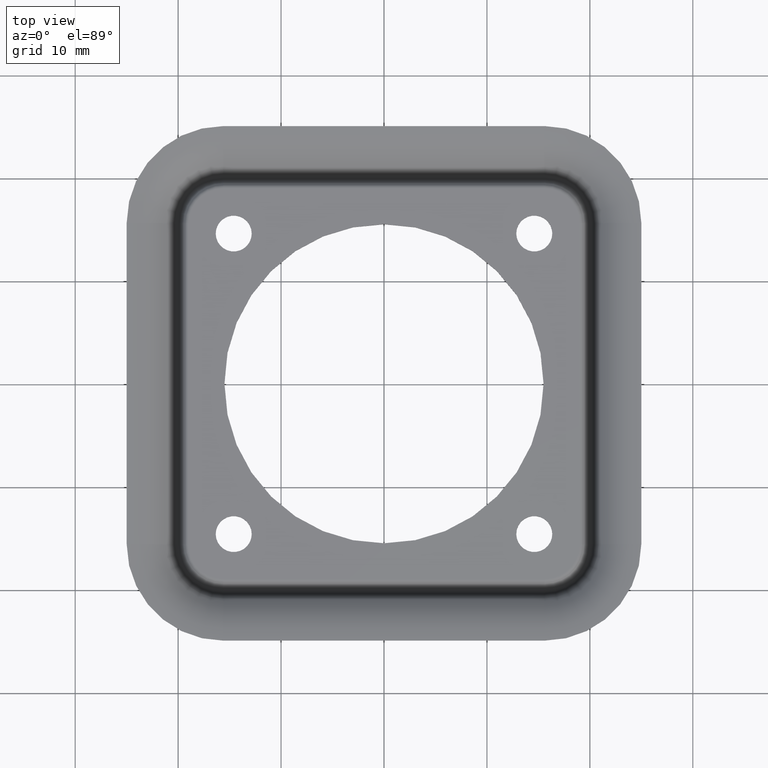
[diagram: clean part render]
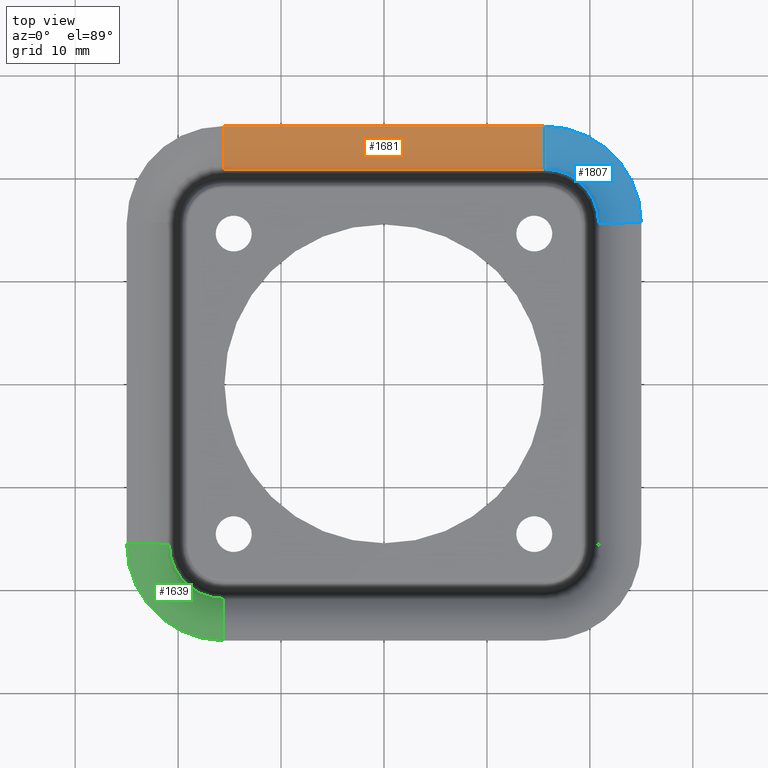
[diagram: same view with three faces highlighted in distinct colors, each labeled with its STEP entity id]
A machine part, top view with three faces highlighted in distinct colors.
Their STEP definitions:

[orange] entity #1681 — the highlighted cylindrical surface (partial cylindrical patch) has radius 5.2858 mm, axis along (-1, 0, 0).
#425=CARTESIAN_POINT('',(-1.56E1,2.5E1,-2.285771302338E0));
#426=DIRECTION('',(-1.E0,0.E0,0.E0));
#427=DIRECTION('',(0.E0,-7.833144229636E-1,6.216257031183E-1));
#428=AXIS2_PLACEMENT_3D('',#425,#426,#427);
#435=DIRECTION('',(1.E0,0.E0,0.E0));
#436=VECTOR('',#435,3.12E1);
#437=CARTESIAN_POINT('',(-1.56E1,2.5E1,3.E0));
#438=LINE('',#437,#436);
#439=CARTESIAN_POINT('',(1.56E1,2.5E1,-2.285771302338E0));
#440=DIRECTION('',(-1.E0,0.E0,0.E0));
#441=DIRECTION('',(0.E0,-7.833144229636E-1,6.216257031183E-1));
#442=AXIS2_PLACEMENT_3D('',#439,#440,#441);
#444=DIRECTION('',(-1.E0,0.E0,0.E0));
#445=VECTOR('',#444,3.12E1);
#446=CARTESIAN_POINT('',(1.56E1,2.085957910239E1,1.E0));
#447=LINE('',#446,#445);
#837=CARTESIAN_POINT('',(-1.56E1,2.5E1,3.E0));
#839=VERTEX_POINT('',#837);
#865=CARTESIAN_POINT('',(1.56E1,2.5E1,3.E0));
#867=VERTEX_POINT('',#865);
#874=CARTESIAN_POINT('',(-1.56E1,2.085957910239E1,1.E0));
#876=VERTEX_POINT('',#874);
#930=CARTESIAN_POINT('',(1.56E1,2.085957910239E1,1.E0));
#932=VERTEX_POINT('',#930);
#1668=CARTESIAN_POINT('',(0.E0,2.5E1,-2.285771302338E0));
#1669=DIRECTION('',(-1.E0,0.E0,0.E0));
#1670=DIRECTION('',(0.E0,-1.E0,0.E0));
#1671=AXIS2_PLACEMENT_3D('',#1668,#1669,#1670);
#1672=CYLINDRICAL_SURFACE('',#1671,5.285771302338E0);
#1674=ORIENTED_EDGE('',*,*,#1673,.T.);
#1676=ORIENTED_EDGE('',*,*,#1675,.F.);
#1677=ORIENTED_EDGE('',*,*,#1438,.T.);
#1678=ORIENTED_EDGE('',*,*,#1659,.T.);
#1679=EDGE_LOOP('',(#1674,#1676,#1677,#1678));
#1680=FACE_OUTER_BOUND('',#1679,.F.);
#1681=ADVANCED_FACE('',(#1680),#1672,.T.);
#429=CIRCLE('',#428,5.285771302338E0);
#443=CIRCLE('',#442,5.285771302338E0);
#1438=EDGE_CURVE('',#932,#876,#447,.T.);
#1659=EDGE_CURVE('',#876,#839,#429,.T.);
#1673=EDGE_CURVE('',#839,#867,#438,.T.);
#1675=EDGE_CURVE('',#932,#867,#443,.T.);

[blue] entity #1807 — the highlighted toroidal blend (fillet) surface has major radius 9.4 mm and minor (blend) radius 5.2858 mm.
#439=CARTESIAN_POINT('',(1.56E1,2.5E1,-2.285771302338E0));
#440=DIRECTION('',(-1.E0,0.E0,0.E0));
#441=DIRECTION('',(0.E0,-7.833144229636E-1,6.216257031183E-1));
#442=AXIS2_PLACEMENT_3D('',#439,#440,#441);
#514=CARTESIAN_POINT('',(2.5E1,1.56E1,-2.285771302338E0));
#515=DIRECTION('',(0.E0,1.E0,0.E0));
#516=DIRECTION('',(-7.833144229636E-1,0.E0,6.216257031183E-1));
#517=AXIS2_PLACEMENT_3D('',#514,#515,#516);
#519=CARTESIAN_POINT('',(1.56E1,1.56E1,1.E0));
#520=DIRECTION('',(0.E0,0.E0,1.E0));
#521=DIRECTION('',(1.E0,0.E0,0.E0));
#522=AXIS2_PLACEMENT_3D('',#519,#520,#521);
#528=CARTESIAN_POINT('',(1.56E1,1.56E1,3.E0));
#529=DIRECTION('',(0.E0,0.E0,1.E0));
#530=DIRECTION('',(1.E0,0.E0,0.E0));
#531=AXIS2_PLACEMENT_3D('',#528,#529,#530);
#861=CARTESIAN_POINT('',(2.5E1,1.56E1,3.E0));
#863=VERTEX_POINT('',#861);
#865=CARTESIAN_POINT('',(1.56E1,2.5E1,3.E0));
#867=VERTEX_POINT('',#865);
#922=CARTESIAN_POINT('',(2.085957910239E1,1.56E1,1.E0));
#924=VERTEX_POINT('',#922);
#930=CARTESIAN_POINT('',(1.56E1,2.085957910239E1,1.E0));
#932=VERTEX_POINT('',#930);
#1795=CARTESIAN_POINT('',(1.56E1,1.56E1,-2.285771302338E0));
#1796=DIRECTION('',(0.E0,0.E0,1.E0));
#1797=DIRECTION('',(-1.E0,0.E0,0.E0));
#1798=AXIS2_PLACEMENT_3D('',#1795,#1796,#1797);
#1799=TOROIDAL_SURFACE('',#1798,9.4E0,5.285771302338E0);
#1800=ORIENTED_EDGE('',*,*,#1788,.F.);
#1801=ORIENTED_EDGE('',*,*,#1565,.T.);
#1802=ORIENTED_EDGE('',*,*,#1675,.T.);
#1804=ORIENTED_EDGE('',*,*,#1803,.F.);
#1805=EDGE_LOOP('',(#1800,#1801,#1802,#1804));
#1806=FACE_OUTER_BOUND('',#1805,.F.);
#1807=ADVANCED_FACE('',(#1806),#1799,.T.);
#443=CIRCLE('',#442,5.285771302338E0);
#518=CIRCLE('',#517,5.285771302338E0);
#523=CIRCLE('',#522,5.259579102391E0);
#532=CIRCLE('',#531,9.4E0);
#1565=EDGE_CURVE('',#924,#932,#523,.T.);
#1675=EDGE_CURVE('',#932,#867,#443,.T.);
#1788=EDGE_CURVE('',#924,#863,#518,.T.);
#1803=EDGE_CURVE('',#863,#867,#532,.T.);

[green] entity #1639 — the highlighted toroidal blend (fillet) surface has major radius 9.4 mm and minor (blend) radius 5.2858 mm.
#397=CARTESIAN_POINT('',(-1.56E1,-2.5E1,-2.285771302338E0));
#398=DIRECTION('',(1.E0,0.E0,0.E0));
#399=DIRECTION('',(0.E0,7.833144229636E-1,6.216257031183E-1));
#400=AXIS2_PLACEMENT_3D('',#397,#398,#399);
#406=CARTESIAN_POINT('',(-2.5E1,-1.56E1,-2.285771302338E0));
#407=DIRECTION('',(0.E0,-1.E0,0.E0));
#408=DIRECTION('',(7.833144229636E-1,0.E0,6.216257031183E-1));
#409=AXIS2_PLACEMENT_3D('',#406,#407,#408);
#411=CARTESIAN_POINT('',(-1.56E1,-1.56E1,1.E0));
#412=DIRECTION('',(0.E0,0.E0,1.E0));
#413=DIRECTION('',(-1.E0,0.E0,0.E0));
#414=AXIS2_PLACEMENT_3D('',#411,#412,#413);
#473=CARTESIAN_POINT('',(-1.56E1,-1.56E1,3.E0));
#474=DIRECTION('',(0.E0,0.E0,1.E0));
#475=DIRECTION('',(-1.E0,0.E0,0.E0));
#476=AXIS2_PLACEMENT_3D('',#473,#474,#475);
#845=CARTESIAN_POINT('',(-2.5E1,-1.56E1,3.E0));
#847=VERTEX_POINT('',#845);
#849=CARTESIAN_POINT('',(-1.56E1,-2.5E1,3.E0));
#851=VERTEX_POINT('',#849);
#890=CARTESIAN_POINT('',(-2.085957910239E1,-1.56E1,1.E0));
#892=VERTEX_POINT('',#890);
#898=CARTESIAN_POINT('',(-1.56E1,-2.085957910239E1,1.E0));
#900=VERTEX_POINT('',#898);
#1626=CARTESIAN_POINT('',(-1.56E1,-1.56E1,-2.285771302338E0));
#1627=DIRECTION('',(0.E0,0.E0,1.E0));
#1628=DIRECTION('',(1.E0,0.E0,0.E0));
#1629=AXIS2_PLACEMENT_3D('',#1626,#1627,#1628);
#1630=TOROIDAL_SURFACE('',#1629,9.4E0,5.285771302338E0);
#1632=ORIENTED_EDGE('',*,*,#1631,.F.);
#1633=ORIENTED_EDGE('',*,*,#1483,.T.);
#1634=ORIENTED_EDGE('',*,*,#1616,.T.);
#1636=ORIENTED_EDGE('',*,*,#1635,.F.);
#1637=EDGE_LOOP('',(#1632,#1633,#1634,#1636));
#1638=FACE_OUTER_BOUND('',#1637,.F.);
#1639=ADVANCED_FACE('',(#1638),#1630,.T.);
#401=CIRCLE('',#400,5.285771302338E0);
#410=CIRCLE('',#409,5.285771302338E0);
#415=CIRCLE('',#414,5.259579102391E0);
#477=CIRCLE('',#476,9.4E0);
#1483=EDGE_CURVE('',#892,#900,#415,.T.);
#1616=EDGE_CURVE('',#900,#851,#401,.T.);
#1631=EDGE_CURVE('',#892,#847,#410,.T.);
#1635=EDGE_CURVE('',#847,#851,#477,.T.);